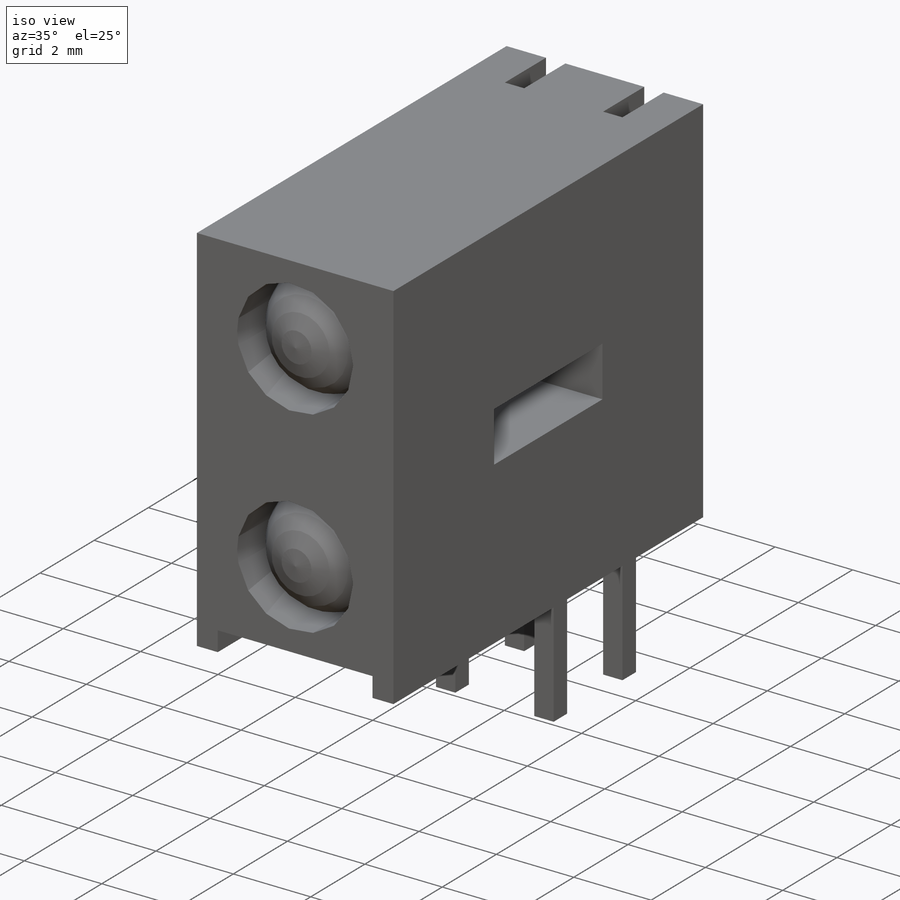
[diagram: iso view]
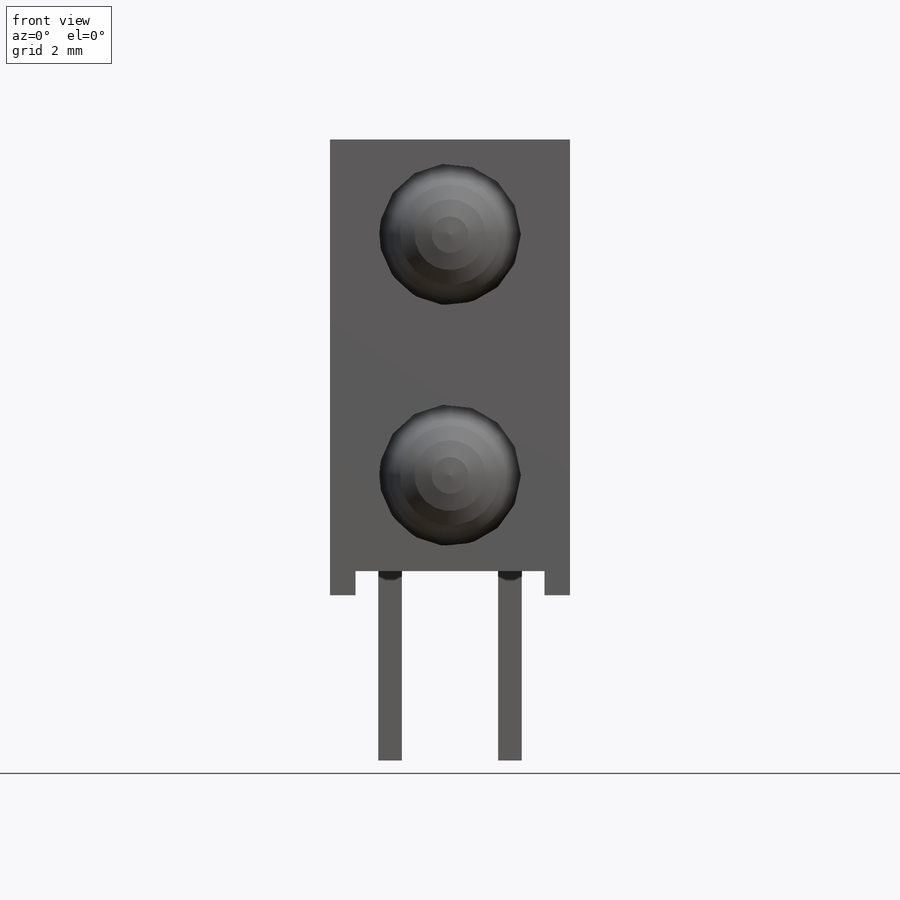
[diagram: front view]
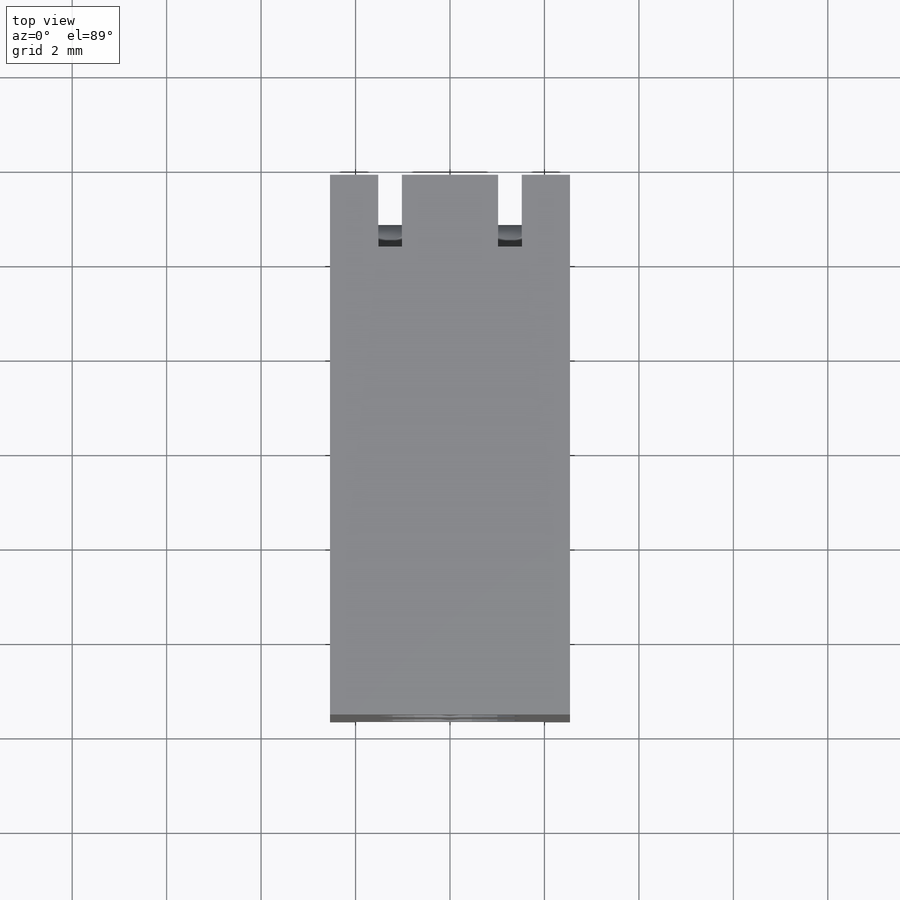
[diagram: top view]
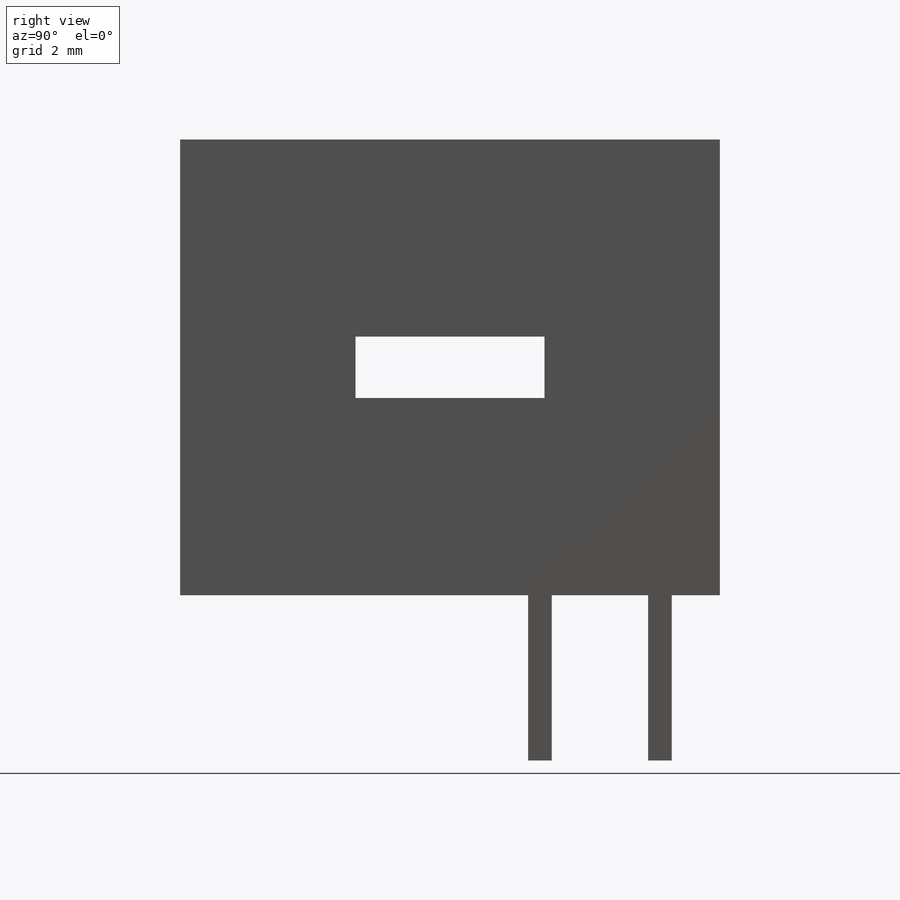
[diagram: right view]
SOLIDWORKS PART (.sldprt)
format: sldprt  version: not decoded by parser v0  size: 779,776 bytes
history: native  units: mm
features: sketch x11, cut_extrude x5, extrude x4, revolve x2, material x1, fillet x1 (+12 scaffold rows collapsed)
feature tree (36):
  scaffold x12  (default folders/planes/origin — collapsed)
  material  "Material <not specified>"
  sketch  "Sketch1"  dims[c1.D4=3.0mm c1.D7=3.0mm c1.D1=11.43mm c1.D2=9.65mm c1.D3=2.535mm c1.D5=3.2mm c1.D6=5.08mm c1.D8=3.2mm c2.D5=2.5mm c2.D8=5.08mm c2.D9=5.08mm c2.D6=5.1mm c3.D8=0.51mm c3.D9=4.0mm c3.D10=1.3mm]
  extrude  "Extrude1"  Depth=5.08mm
  cut_extrude  "Cut-Extrude1"  [1 undecoded]
  sketch  "Sketch1<6>"  dims[D1=4.0mm]
  sketch  "Sketch2"  dims[D1=3.0mm D2=3.0mm]
  cut_extrude  "Cut-Extrude2"  [1 undecoded]
  revolve  "Revolve1"  [1 undecoded]
  sketch  "Sketch1<7>"  dims[D1=360.0deg]
  revolve  "Revolve2"  [1 undecoded]
  sketch  "Sketch1<8>"  dims[D1=360.0deg]
  sketch  "Sketch3"  dims[c1.D1=0.5mm c1.D2=0.5mm c1.D3=0.5mm c1.D4=7.62mm c1.D5=4.06mm c2.D5=90.0deg c3.D5=2.54mm c3.D6=2.54mm]
  cut_extrude  "Cut-Extrude3"  [1 undecoded]
  extrude  "Extrude2"  [1 undecoded]
  sketch  "Sketch3<3>"
  cut_extrude  "Cut-Extrude4"  [1 undecoded]
  sketch  "Sketch3<4>"
  extrude  "Extrude3"  [1 undecoded]
  sketch  "Sketch3<5>"
  extrude  "Extrude4"  [1 undecoded]
  sketch  "Sketch3<6>"  dims[D1=3.5mm]
  fillet  "Fillet1"  Radius=0.5mm
  sketch  "Sketch4"
  cut_extrude  "Cut-Extrude5"  Depth=0.01mm
decode coverage: 10 of 23 modeling features carry decoded parameters
note: 9 parameter values undecoded
summary: no parameter record found for 9 features
note: suppression state not decoded; provenance and decode notes live in map.json
